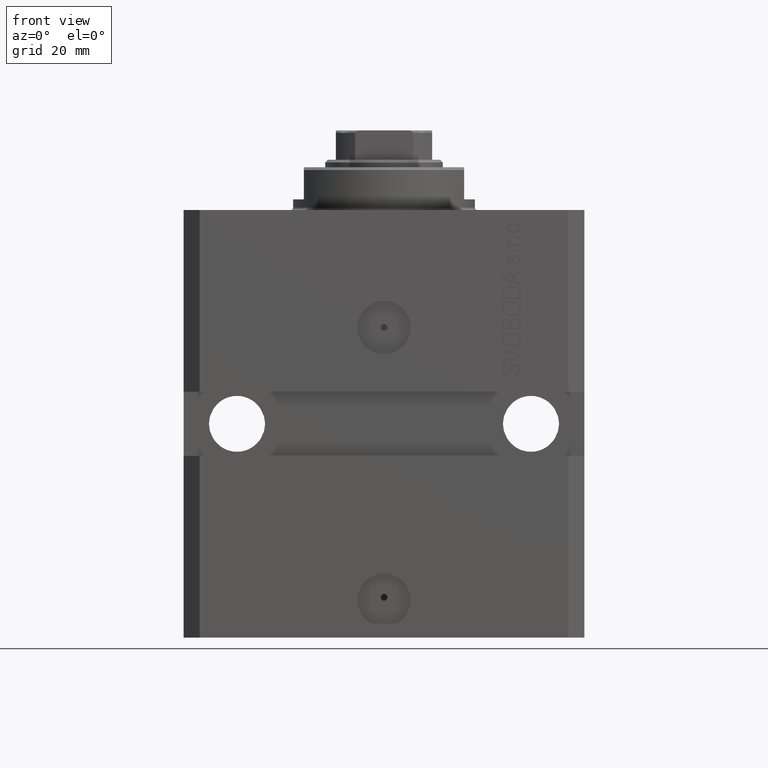
[diagram: clean part render]
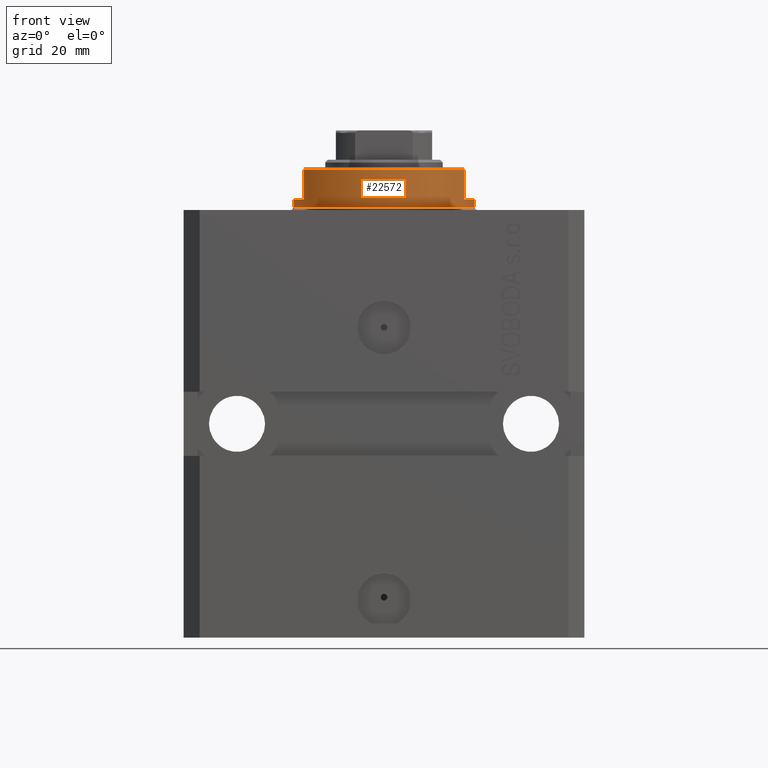
[diagram: same view with one face highlighted and labeled with its STEP entity id]
A machine part, front view. The second image highlights one B-rep face of the part: STEP entity #22572.
In plain terms, the highlighted cylindrical surface (partial cylindrical patch) has radius 17 mm, axis along (0, 0, -1).
Its self-contained STEP definition (entity closure, byte-faithful):
#1250 = DIRECTION ( 'NONE',  ( -0.000000000000000000, -0.000000000000000000, 1.000000000000000000 ) ) ;
#1299 = VECTOR ( 'NONE', #9213, 1000.000000000000000 ) ;
#1792 = CARTESIAN_POINT ( 'NONE',  ( -17.00000000000000000, 2.081899558550500280E-15, -8.000000000000000000 ) ) ;
#3163 = VERTEX_POINT ( 'NONE', #29519 ) ;
#3213 = CARTESIAN_POINT ( 'NONE',  ( 0.000000000000000000, 0.000000000000000000, -0.5000000000000004441 ) ) ;
#3741 = CARTESIAN_POINT ( 'NONE',  ( 17.00000000000000000, 0.000000000000000000, -2.000000000000000000 ) ) ;
#5668 = DIRECTION ( 'NONE',  ( 0.000000000000000000, 0.000000000000000000, -1.000000000000000000 ) ) ;
#5854 = ORIENTED_EDGE ( 'NONE', *, *, #12158, .T. ) ;
#6172 = ORIENTED_EDGE ( 'NONE', *, *, #10364, .T. ) ;
#6609 = VERTEX_POINT ( 'NONE', #7588 ) ;
#6849 = CARTESIAN_POINT ( 'NONE',  ( 0.000000000000000000, 0.000000000000000000, -2.000000000000000000 ) ) ;
#7082 = DIRECTION ( 'NONE',  ( -1.000000000000000000, 0.000000000000000000, 0.000000000000000000 ) ) ;
#7588 = CARTESIAN_POINT ( 'NONE',  ( -14.99999999999999645, -8.000000000000003553, -2.000000000000000000 ) ) ;
#8138 = CARTESIAN_POINT ( 'NONE',  ( 14.99999999999999645, -8.000000000000003553, -2.000000000000000000 ) ) ;
#8439 = DIRECTION ( 'NONE',  ( 1.000000000000000000, 0.000000000000000000, 0.000000000000000000 ) ) ;
#8458 = VERTEX_POINT ( 'NONE', #30888 ) ;
#8510 = AXIS2_PLACEMENT_3D ( 'NONE', #11092, #14680, #43207 ) ;
#9142 = FACE_OUTER_BOUND ( 'NONE', #17480, .T. ) ;
#9213 = DIRECTION ( 'NONE',  ( -0.000000000000000000, -0.000000000000000000, 1.000000000000000000 ) ) ;
#9693 = LINE ( 'NONE', #38911, #1299 ) ;
#10167 = VECTOR ( 'NONE', #36336, 1000.000000000000000 ) ;
#10364 = EDGE_CURVE ( 'NONE', #40334, #16067, #9693, .T. ) ;
#10512 = VECTOR ( 'NONE', #44907, 1000.000000000000000 ) ;
#11092 = CARTESIAN_POINT ( 'NONE',  ( 0.000000000000000000, 0.000000000000000000, -7.500000000000013323 ) ) ;
#12095 = LINE ( 'NONE', #1792, #10512 ) ;
#12158 = EDGE_CURVE ( 'NONE', #6609, #17683, #21255, .T. ) ;
#12503 = CARTESIAN_POINT ( 'NONE',  ( 0.000000000000000000, 0.000000000000000000, -8.000000000000000000 ) ) ;
#12743 = DIRECTION ( 'NONE',  ( 0.000000000000000000, 0.000000000000000000, -1.000000000000000000 ) ) ;
#13218 = DIRECTION ( 'NONE',  ( -1.000000000000000000, 0.000000000000000000, 0.000000000000000000 ) ) ;
#13586 = AXIS2_PLACEMENT_3D ( 'NONE', #24486, #12743, #13218 ) ;
#13948 = AXIS2_PLACEMENT_3D ( 'NONE', #6849, #36070, #7082 ) ;
#14464 = DIRECTION ( 'NONE',  ( 1.000000000000000000, 0.000000000000000000, 0.000000000000000000 ) ) ;
#14504 = EDGE_CURVE ( 'NONE', #16067, #3163, #16391, .T. ) ;
#14680 = DIRECTION ( 'NONE',  ( 0.000000000000000000, 0.000000000000000000, 1.000000000000000000 ) ) ;
#16067 = VERTEX_POINT ( 'NONE', #32866 ) ;
#16391 = CIRCLE ( 'NONE', #30940, 17.00000000000000000 ) ;
#17480 = EDGE_LOOP ( 'NONE', ( #17981, #21488, #5854, #38503, #26673, #22234, #6172, #31213 ) ) ;
#17683 = VERTEX_POINT ( 'NONE', #32776 ) ;
#17981 = ORIENTED_EDGE ( 'NONE', *, *, #25546, .F. ) ;
#20470 = AXIS2_PLACEMENT_3D ( 'NONE', #12503, #1250, #8439 ) ;
#20534 = LINE ( 'NONE', #46152, #21137 ) ;
#21137 = VECTOR ( 'NONE', #5668, 1000.000000000000000 ) ;
#21255 = LINE ( 'NONE', #29857, #10167 ) ;
#21469 = VERTEX_POINT ( 'NONE', #8138 ) ;
#21488 = ORIENTED_EDGE ( 'NONE', *, *, #45052, .F. ) ;
#22234 = ORIENTED_EDGE ( 'NONE', *, *, #25988, .F. ) ;
#22572 = ADVANCED_FACE ( 'NONE', ( #9142 ), #38370, .T. ) ;
#22959 = EDGE_CURVE ( 'NONE', #21469, #29677, #20534, .T. ) ;
#24486 = CARTESIAN_POINT ( 'NONE',  ( 0.000000000000000000, 0.000000000000000000, -2.000000000000000000 ) ) ;
#25353 = CIRCLE ( 'NONE', #8510, 17.00000000000000000 ) ;
#25546 = EDGE_CURVE ( 'NONE', #8458, #3163, #12095, .T. ) ;
#25829 = CIRCLE ( 'NONE', #13586, 17.00000000000000000 ) ;
#25988 = EDGE_CURVE ( 'NONE', #40334, #21469, #25829, .T. ) ;
#26199 = CARTESIAN_POINT ( 'NONE',  ( 15.00000000000000000, -8.000000000000001776, -7.500000000000013323 ) ) ;
#26673 = ORIENTED_EDGE ( 'NONE', *, *, #22959, .F. ) ;
#29519 = CARTESIAN_POINT ( 'NONE',  ( -17.00000000000000000, 2.081899558550500280E-15, -0.5000000000000004441 ) ) ;
#29677 = VERTEX_POINT ( 'NONE', #26199 ) ;
#29857 = CARTESIAN_POINT ( 'NONE',  ( -15.00000000000000000, -8.000000000000001776, -8.000000000000000000 ) ) ;
#30888 = CARTESIAN_POINT ( 'NONE',  ( -17.00000000000000000, 2.081899558550500280E-15, -2.000000000000000000 ) ) ;
#30940 = AXIS2_PLACEMENT_3D ( 'NONE', #3213, #43227, #14464 ) ;
#31213 = ORIENTED_EDGE ( 'NONE', *, *, #14504, .T. ) ;
#32776 = CARTESIAN_POINT ( 'NONE',  ( -15.00000000000000000, -8.000000000000001776, -7.500000000000014211 ) ) ;
#32866 = CARTESIAN_POINT ( 'NONE',  ( 17.00000000000000000, 0.000000000000000000, -0.5000000000000004441 ) ) ;
#35051 = EDGE_CURVE ( 'NONE', #17683, #29677, #25353, .T. ) ;
#36070 = DIRECTION ( 'NONE',  ( 0.000000000000000000, 0.000000000000000000, -1.000000000000000000 ) ) ;
#36336 = DIRECTION ( 'NONE',  ( 0.000000000000000000, 0.000000000000000000, -1.000000000000000000 ) ) ;
#38370 = CYLINDRICAL_SURFACE ( 'NONE', #20470, 17.00000000000000000 ) ;
#38503 = ORIENTED_EDGE ( 'NONE', *, *, #35051, .T. ) ;
#38911 = CARTESIAN_POINT ( 'NONE',  ( 17.00000000000000000, 0.000000000000000000, -8.000000000000000000 ) ) ;
#40334 = VERTEX_POINT ( 'NONE', #3741 ) ;
#43207 = DIRECTION ( 'NONE',  ( -1.000000000000000000, 0.000000000000000000, 0.000000000000000000 ) ) ;
#43227 = DIRECTION ( 'NONE',  ( -0.000000000000000000, -0.000000000000000000, -1.000000000000000000 ) ) ;
#44907 = DIRECTION ( 'NONE',  ( -0.000000000000000000, -0.000000000000000000, 1.000000000000000000 ) ) ;
#45052 = EDGE_CURVE ( 'NONE', #6609, #8458, #46835, .T. ) ;
#46152 = CARTESIAN_POINT ( 'NONE',  ( 15.00000000000000000, -8.000000000000001776, -8.000000000000000000 ) ) ;
#46835 = CIRCLE ( 'NONE', #13948, 17.00000000000000000 ) ;